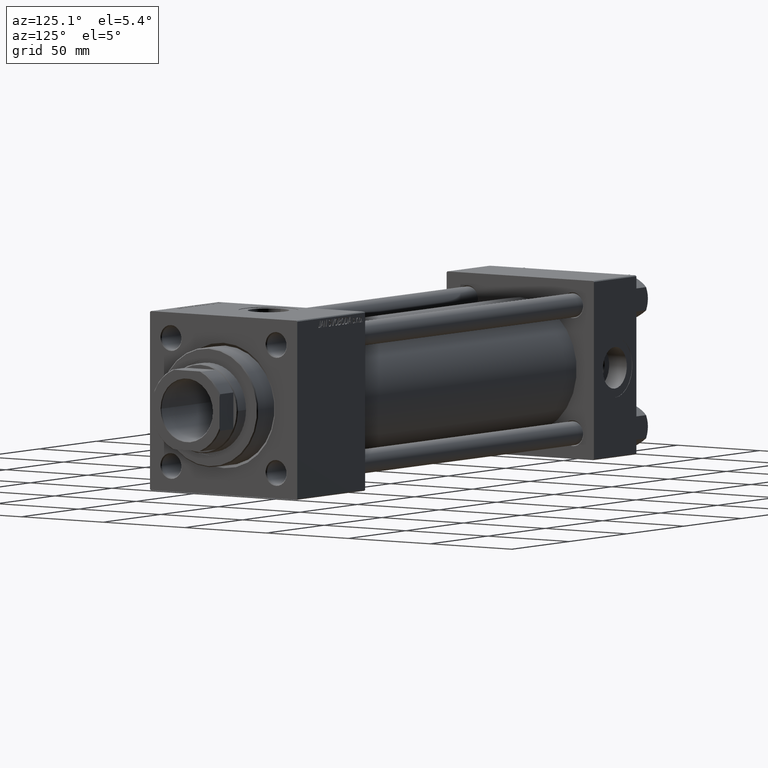
[diagram: clean part render]
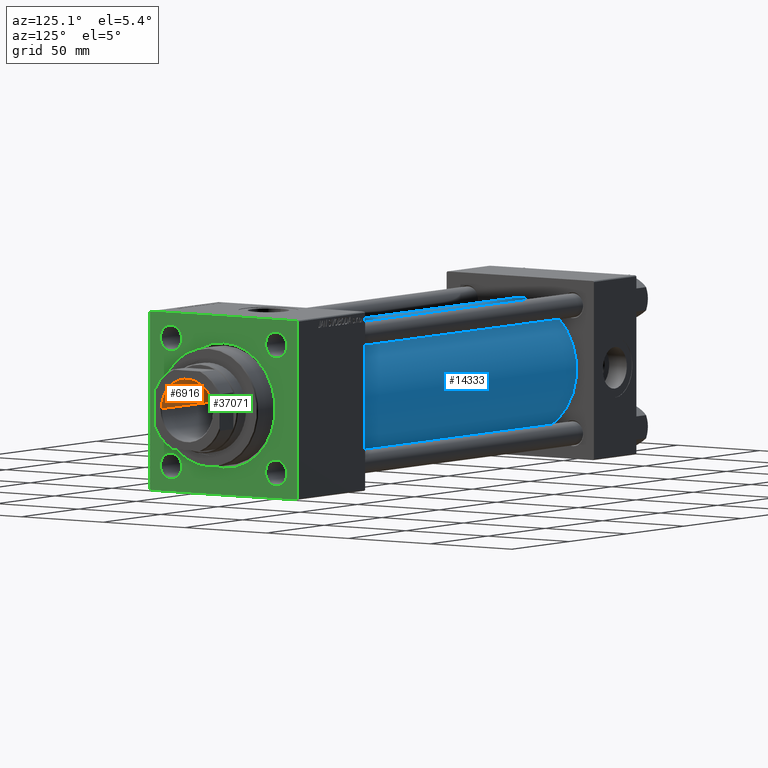
[diagram: same view with three faces highlighted in distinct colors, each labeled with its STEP entity id]
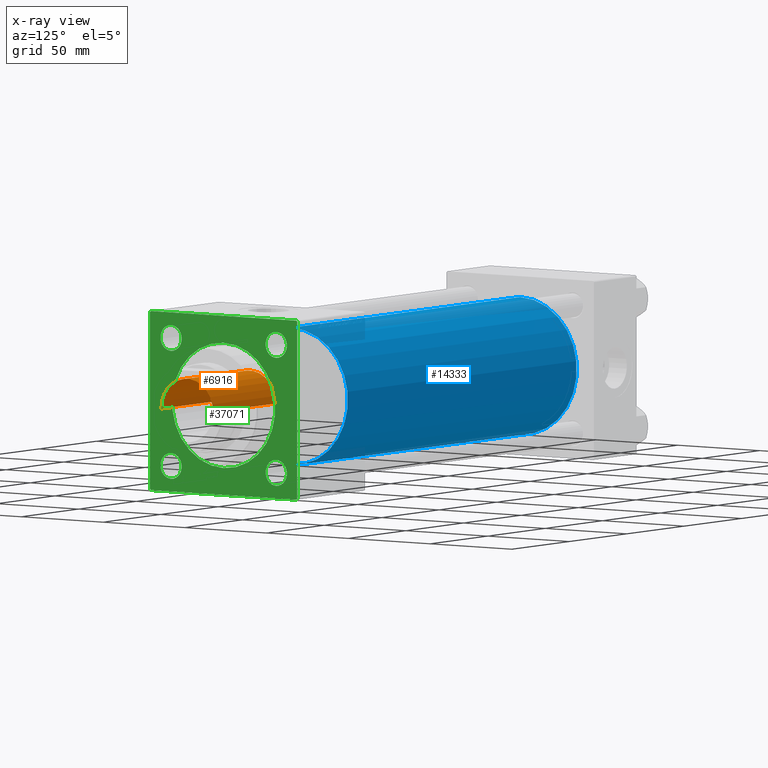
[diagram: x-ray of the same camera — body ghosted, the three highlighted faces saturated]
A machine part, auxiliary view with three faces highlighted in distinct colors.
The next image is the same camera in x-ray (body ghosted, the three faces saturated) — at least one of them is partly hidden behind the body in this view.
Their STEP definitions:

[orange] entity #6916 — the highlighted cylindrical surface (edge-blend (fillet) strip) has radius 15.75 mm, axis along (1, 0, 0).
#356 = AXIS2_PLACEMENT_3D ( 'NONE', #35324, #11769, #46736 ) ;
#3446 = DIRECTION ( 'NONE',  ( 1.000000000000000000, 0.000000000000000000, 0.000000000000000000 ) ) ;
#5025 = DIRECTION ( 'NONE',  ( -0.000000000000000000, -0.000000000000000000, 1.000000000000000000 ) ) ;
#6916 = ADVANCED_FACE ( 'NONE', ( #29017 ), #40423, .F. ) ;
#6994 = CARTESIAN_POINT ( 'NONE',  ( 0.000000000000000000, 0.000000000000000000, 235.0000000000000000 ) ) ;
#7410 = DIRECTION ( 'NONE',  ( -0.000000000000000000, -0.000000000000000000, 1.000000000000000000 ) ) ;
#8553 = VECTOR ( 'NONE', #7410, 1000.000000000000000 ) ;
#9266 = DIRECTION ( 'NONE',  ( 1.000000000000000000, 0.000000000000000000, 0.000000000000000000 ) ) ;
#11755 = ORIENTED_EDGE ( 'NONE', *, *, #15854, .T. ) ;
#11769 = DIRECTION ( 'NONE',  ( 0.000000000000000000, 0.000000000000000000, 1.000000000000000000 ) ) ;
#12092 = AXIS2_PLACEMENT_3D ( 'NONE', #6994, #22225, #3446 ) ;
#13133 = VERTEX_POINT ( 'NONE', #26645 ) ;
#14381 = VERTEX_POINT ( 'NONE', #36432 ) ;
#15327 = CIRCLE ( 'NONE', #12092, 15.74999999999998934 ) ;
#15854 = EDGE_CURVE ( 'NONE', #14381, #26039, #47282, .T. ) ;
#21224 = CARTESIAN_POINT ( 'NONE',  ( -15.74999999999998934, 1.928818708657080161E-15, 235.0000000000000000 ) ) ;
#22225 = DIRECTION ( 'NONE',  ( -0.000000000000000000, -0.000000000000000000, 1.000000000000000000 ) ) ;
#22501 = EDGE_CURVE ( 'NONE', #34502, #14381, #23131, .T. ) ;
#23131 = LINE ( 'NONE', #38573, #8553 ) ;
#23780 = EDGE_CURVE ( 'NONE', #13133, #26039, #44297, .T. ) ;
#26039 = VERTEX_POINT ( 'NONE', #35453 ) ;
#26645 = CARTESIAN_POINT ( 'NONE',  ( 15.74999999999998934, 0.000000000000000000, 235.0000000000000000 ) ) ;
#28032 = DIRECTION ( 'NONE',  ( -0.000000000000000000, -0.000000000000000000, 1.000000000000000000 ) ) ;
#28100 = CARTESIAN_POINT ( 'NONE',  ( 15.74999999999999289, 0.000000000000000000, 290.0000000000000000 ) ) ;
#29017 = FACE_OUTER_BOUND ( 'NONE', #38906, .T. ) ;
#30333 = ORIENTED_EDGE ( 'NONE', *, *, #31728, .F. ) ;
#31728 = EDGE_CURVE ( 'NONE', #34502, #13133, #15327, .T. ) ;
#32408 = AXIS2_PLACEMENT_3D ( 'NONE', #36616, #28032, #9266 ) ;
#34502 = VERTEX_POINT ( 'NONE', #21224 ) ;
#35324 = CARTESIAN_POINT ( 'NONE',  ( 0.000000000000000000, 0.000000000000000000, 289.6999999999998749 ) ) ;
#35453 = CARTESIAN_POINT ( 'NONE',  ( 15.74999999999999289, 0.000000000000000000, 289.6999999999998749 ) ) ;
#36432 = CARTESIAN_POINT ( 'NONE',  ( -15.74999999999999289, 1.928818708657080556E-15, 289.6999999999998749 ) ) ;
#36616 = CARTESIAN_POINT ( 'NONE',  ( 0.000000000000000000, 0.000000000000000000, 290.0000000000000000 ) ) ;
#38573 = CARTESIAN_POINT ( 'NONE',  ( -15.74999999999999289, 1.928818708657080556E-15, 290.0000000000000000 ) ) ;
#38906 = EDGE_LOOP ( 'NONE', ( #30333, #47325, #11755, #44699 ) ) ;
#40423 = CYLINDRICAL_SURFACE ( 'NONE', #32408, 15.74999999999999289 ) ;
#44297 = LINE ( 'NONE', #28100, #49867 ) ;
#44699 = ORIENTED_EDGE ( 'NONE', *, *, #23780, .F. ) ;
#46736 = DIRECTION ( 'NONE',  ( 1.000000000000000000, 0.000000000000000000, 0.000000000000000000 ) ) ;
#47282 = CIRCLE ( 'NONE', #356, 15.74999999999999289 ) ;
#47325 = ORIENTED_EDGE ( 'NONE', *, *, #22501, .T. ) ;
#49867 = VECTOR ( 'NONE', #5025, 1000.000000000000000 ) ;

[blue] entity #14333 — the highlighted cylindrical surface (partial cylindrical patch) has radius 34.5 mm, axis along (-1, -0, -0).
#496 = EDGE_CURVE ( 'NONE', #13558, #20638, #39624, .T. ) ;
#1685 = EDGE_CURVE ( 'NONE', #8427, #13558, #4314, .T. ) ;
#2000 = CARTESIAN_POINT ( 'NONE',  ( 236.0000000000000284, -2.602085213965210642E-15, 34.50000000000000000 ) ) ;
#2459 = VERTEX_POINT ( 'NONE', #2000 ) ;
#4314 = LINE ( 'NONE', #12432, #24299 ) ;
#5078 = CARTESIAN_POINT ( 'NONE',  ( 37.00000000000000711, -2.602085213965210642E-15, 34.50000000000000000 ) ) ;
#5265 = CARTESIAN_POINT ( 'NONE',  ( 236.0000000000000284, -2.602085213965210642E-15, 0.000000000000000000 ) ) ;
#5607 = AXIS2_PLACEMENT_3D ( 'NONE', #38513, #30165, #19033 ) ;
#7873 = DIRECTION ( 'NONE',  ( -1.000000000000000000, -0.000000000000000000, -0.000000000000000000 ) ) ;
#8419 = CARTESIAN_POINT ( 'NONE',  ( 236.0000000000000284, 1.622946243093158675E-15, -34.50000000000000000 ) ) ;
#8427 = VERTEX_POINT ( 'NONE', #8419 ) ;
#12432 = CARTESIAN_POINT ( 'NONE',  ( 236.0000000000000284, 1.622946243093158675E-15, -34.50000000000000000 ) ) ;
#13558 = VERTEX_POINT ( 'NONE', #24291 ) ;
#14129 = LINE ( 'NONE', #33614, #41575 ) ;
#14333 = ADVANCED_FACE ( 'NONE', ( #24546 ), #39996, .T. ) ;
#14419 = EDGE_CURVE ( 'NONE', #2459, #20638, #14129, .T. ) ;
#17117 = DIRECTION ( 'NONE',  ( 1.000000000000000000, 0.000000000000000000, 0.000000000000000000 ) ) ;
#18187 = EDGE_LOOP ( 'NONE', ( #30385, #41895, #41552, #21640 ) ) ;
#19033 = DIRECTION ( 'NONE',  ( 0.000000000000000000, 0.000000000000000000, 1.000000000000000000 ) ) ;
#20638 = VERTEX_POINT ( 'NONE', #5078 ) ;
#20751 = DIRECTION ( 'NONE',  ( -1.000000000000000000, -0.000000000000000000, -0.000000000000000000 ) ) ;
#21640 = ORIENTED_EDGE ( 'NONE', *, *, #14419, .F. ) ;
#24291 = CARTESIAN_POINT ( 'NONE',  ( 37.00000000000000711, 1.622946243093158675E-15, -34.50000000000000000 ) ) ;
#24299 = VECTOR ( 'NONE', #7873, 1000.000000000000000 ) ;
#24546 = FACE_OUTER_BOUND ( 'NONE', #18187, .T. ) ;
#26287 = DIRECTION ( 'NONE',  ( -1.000000000000000000, -0.000000000000000000, -0.000000000000000000 ) ) ;
#28258 = DIRECTION ( 'NONE',  ( 0.000000000000000000, 0.000000000000000000, -1.000000000000000000 ) ) ;
#30165 = DIRECTION ( 'NONE',  ( 1.000000000000000000, -0.000000000000000000, 0.000000000000000000 ) ) ;
#30385 = ORIENTED_EDGE ( 'NONE', *, *, #48205, .F. ) ;
#33614 = CARTESIAN_POINT ( 'NONE',  ( 236.0000000000000284, -2.602085213965210642E-15, 34.50000000000000000 ) ) ;
#36180 = DIRECTION ( 'NONE',  ( 0.000000000000000000, 0.000000000000000000, 1.000000000000000000 ) ) ;
#36924 = AXIS2_PLACEMENT_3D ( 'NONE', #47517, #17117, #28258 ) ;
#38513 = CARTESIAN_POINT ( 'NONE',  ( 37.00000000000000711, -2.602085213965210642E-15, 0.000000000000000000 ) ) ;
#39624 = CIRCLE ( 'NONE', #5607, 34.50000000000000000 ) ;
#39996 = CYLINDRICAL_SURFACE ( 'NONE', #43993, 34.50000000000000000 ) ;
#41552 = ORIENTED_EDGE ( 'NONE', *, *, #496, .T. ) ;
#41575 = VECTOR ( 'NONE', #26287, 1000.000000000000000 ) ;
#41895 = ORIENTED_EDGE ( 'NONE', *, *, #1685, .T. ) ;
#43993 = AXIS2_PLACEMENT_3D ( 'NONE', #5265, #20751, #36180 ) ;
#47517 = CARTESIAN_POINT ( 'NONE',  ( 236.0000000000000284, -2.602085213965210642E-15, 0.000000000000000000 ) ) ;
#48205 = EDGE_CURVE ( 'NONE', #8427, #2459, #49087, .T. ) ;
#49087 = CIRCLE ( 'NONE', #36924, 34.50000000000000000 ) ;

[green] entity #37071 — the highlighted planar face has unit normal (-1, 0, 0).
#188 = EDGE_CURVE ( 'NONE', #35543, #7197, #37987, .T. ) ;
#965 = EDGE_CURVE ( 'NONE', #21831, #42620, #46093, .T. ) ;
#1151 = CARTESIAN_POINT ( 'NONE',  ( 295.0000000000000568, 32.14999999999999147, -25.64999999999999858 ) ) ;
#1575 = DIRECTION ( 'NONE',  ( 0.000000000000000000, -0.7071067811865672237, 0.7071067811865279218 ) ) ;
#1736 = EDGE_CURVE ( 'NONE', #43436, #41792, #32420, .T. ) ;
#1899 = CARTESIAN_POINT ( 'NONE',  ( 295.0000000000000568, 45.00000000000001421, -44.50000000000000000 ) ) ;
#1921 = CIRCLE ( 'NONE', #5974, 6.500000000000005329 ) ;
#1922 = DIRECTION ( 'NONE',  ( 0.000000000000000000, -1.000000000000000000, 0.000000000000000000 ) ) ;
#2238 = CARTESIAN_POINT ( 'NONE',  ( 295.0000000000000568, -32.14999999999999147, 32.14999999999999147 ) ) ;
#2475 = FACE_BOUND ( 'NONE', #5438, .T. ) ;
#2748 = AXIS2_PLACEMENT_3D ( 'NONE', #16122, #23459, #35856 ) ;
#2817 = DIRECTION ( 'NONE',  ( 0.000000000000000000, 0.000000000000000000, 1.000000000000000000 ) ) ;
#2894 = AXIS2_PLACEMENT_3D ( 'NONE', #48737, #6910, #33012 ) ;
#3451 = ORIENTED_EDGE ( 'NONE', *, *, #11926, .T. ) ;
#3815 = DIRECTION ( 'NONE',  ( -1.000000000000000000, -0.000000000000000000, -0.000000000000000000 ) ) ;
#4151 = CARTESIAN_POINT ( 'NONE',  ( 295.0000000000000568, 3.857637417314162689E-15, 31.50000000000000000 ) ) ;
#4162 = DIRECTION ( 'NONE',  ( 0.000000000000000000, 0.000000000000000000, 1.000000000000000000 ) ) ;
#4880 = VECTOR ( 'NONE', #1922, 1000.000000000000000 ) ;
#5038 = ORIENTED_EDGE ( 'NONE', *, *, #44558, .T. ) ;
#5191 = VERTEX_POINT ( 'NONE', #24623 ) ;
#5325 = CARTESIAN_POINT ( 'NONE',  ( 295.0000000000000568, -44.49999999999997158, 44.99999999999998579 ) ) ;
#5438 = EDGE_LOOP ( 'NONE', ( #39727, #6457 ) ) ;
#5563 = CARTESIAN_POINT ( 'NONE',  ( 295.0000000000000568, -32.14999999999999147, 25.64999999999998437 ) ) ;
#5781 = ORIENTED_EDGE ( 'NONE', *, *, #30085, .T. ) ;
#5782 = DIRECTION ( 'NONE',  ( -0.000000000000000000, 0.000000000000000000, 1.000000000000000000 ) ) ;
#5974 = AXIS2_PLACEMENT_3D ( 'NONE', #8376, #3815, #42596 ) ;
#6098 = DIRECTION ( 'NONE',  ( 0.000000000000000000, 0.000000000000000000, 1.000000000000000000 ) ) ;
#6457 = ORIENTED_EDGE ( 'NONE', *, *, #48246, .T. ) ;
#6774 = CARTESIAN_POINT ( 'NONE',  ( 295.0000000000000568, 45.00000000000001421, 45.00000000000000000 ) ) ;
#6854 = CARTESIAN_POINT ( 'NONE',  ( 295.0000000000000568, 32.14999999999999147, 32.15000000000000568 ) ) ;
#6910 = DIRECTION ( 'NONE',  ( -1.000000000000000000, -0.000000000000000000, -0.000000000000000000 ) ) ;
#7159 = DIRECTION ( 'NONE',  ( -1.000000000000000000, -0.000000000000000000, -0.000000000000000000 ) ) ;
#7197 = VERTEX_POINT ( 'NONE', #46480 ) ;
#7235 = VERTEX_POINT ( 'NONE', #4151 ) ;
#7260 = VERTEX_POINT ( 'NONE', #28222 ) ;
#7658 = CARTESIAN_POINT ( 'NONE',  ( 295.0000000000000568, 32.14999999999999147, -38.65000000000001990 ) ) ;
#7720 = DIRECTION ( 'NONE',  ( 0.000000000000000000, -1.000000000000000000, -1.541976423090495140E-16 ) ) ;
#7934 = EDGE_LOOP ( 'NONE', ( #34724, #36450 ) ) ;
#8376 = CARTESIAN_POINT ( 'NONE',  ( 295.0000000000000568, 32.14999999999999147, -32.15000000000000568 ) ) ;
#9489 = CIRCLE ( 'NONE', #11081, 6.499999999999999112 ) ;
#9734 = DIRECTION ( 'NONE',  ( 0.000000000000000000, 0.000000000000000000, 1.000000000000000000 ) ) ;
#9745 = EDGE_CURVE ( 'NONE', #5191, #14671, #17960, .T. ) ;
#10250 = CARTESIAN_POINT ( 'NONE',  ( 295.0000000000000568, -44.99999999999999289, -44.49999999999997158 ) ) ;
#10285 = CARTESIAN_POINT ( 'NONE',  ( 295.0000000000000568, 45.00000000000001421, -45.00000000000000000 ) ) ;
#10880 = ORIENTED_EDGE ( 'NONE', *, *, #188, .T. ) ;
#11081 = AXIS2_PLACEMENT_3D ( 'NONE', #6854, #21824, #6098 ) ;
#11261 = CIRCLE ( 'NONE', #50076, 6.499999999999999112 ) ;
#11288 = CARTESIAN_POINT ( 'NONE',  ( 295.0000000000000568, 32.14999999999999147, -32.15000000000000568 ) ) ;
#11290 = AXIS2_PLACEMENT_3D ( 'NONE', #48861, #33135, #5782 ) ;
#11926 = EDGE_CURVE ( 'NONE', #18331, #7260, #14092, .T. ) ;
#11934 = ORIENTED_EDGE ( 'NONE', *, *, #46656, .T. ) ;
#11966 = DIRECTION ( 'NONE',  ( 0.000000000000000000, 0.000000000000000000, 1.000000000000000000 ) ) ;
#13171 = CIRCLE ( 'NONE', #28548, 6.500000000000005329 ) ;
#13174 = VECTOR ( 'NONE', #32596, 1000.000000000000000 ) ;
#13407 = VERTEX_POINT ( 'NONE', #37977 ) ;
#14092 = LINE ( 'NONE', #36152, #13174 ) ;
#14204 = DIRECTION ( 'NONE',  ( 0.000000000000000000, 7.709882115452478166E-17, -1.000000000000000000 ) ) ;
#14494 = ORIENTED_EDGE ( 'NONE', *, *, #36747, .T. ) ;
#14671 = VERTEX_POINT ( 'NONE', #1899 ) ;
#14892 = DIRECTION ( 'NONE',  ( -1.000000000000000000, -0.000000000000000000, -0.000000000000000000 ) ) ;
#15134 = ORIENTED_EDGE ( 'NONE', *, *, #47768, .T. ) ;
#15358 = VECTOR ( 'NONE', #14204, 1000.000000000000000 ) ;
#15759 = ORIENTED_EDGE ( 'NONE', *, *, #48051, .T. ) ;
#16043 = CARTESIAN_POINT ( 'NONE',  ( 295.0000000000000568, -32.15000000000001279, -32.15000000000000568 ) ) ;
#16122 = CARTESIAN_POINT ( 'NONE',  ( 295.0000000000000568, -32.15000000000001279, -32.15000000000000568 ) ) ;
#16155 = CARTESIAN_POINT ( 'NONE',  ( 295.0000000000000568, -32.14999999999999147, 38.64999999999999858 ) ) ;
#16888 = VERTEX_POINT ( 'NONE', #32220 ) ;
#17467 = FACE_BOUND ( 'NONE', #7934, .T. ) ;
#17642 = CARTESIAN_POINT ( 'NONE',  ( 295.0000000000000568, 45.00000000000001421, 45.00000000000000000 ) ) ;
#17713 = FACE_OUTER_BOUND ( 'NONE', #46356, .T. ) ;
#17861 = CARTESIAN_POINT ( 'NONE',  ( 295.0000000000000568, 0.000000000000000000, 0.000000000000000000 ) ) ;
#17960 = LINE ( 'NONE', #6774, #31694 ) ;
#18102 = LINE ( 'NONE', #18351, #43745 ) ;
#18211 = DIRECTION ( 'NONE',  ( 0.000000000000000000, 0.000000000000000000, -1.000000000000000000 ) ) ;
#18331 = VERTEX_POINT ( 'NONE', #10250 ) ;
#18351 = CARTESIAN_POINT ( 'NONE',  ( 295.0000000000000568, 45.00000000000001421, -44.50000000000002842 ) ) ;
#21200 = EDGE_LOOP ( 'NONE', ( #5038, #48291 ) ) ;
#21824 = DIRECTION ( 'NONE',  ( -1.000000000000000000, -0.000000000000000000, -0.000000000000000000 ) ) ;
#21831 = VERTEX_POINT ( 'NONE', #16155 ) ;
#22397 = EDGE_CURVE ( 'NONE', #44514, #7235, #39296, .T. ) ;
#22523 = DIRECTION ( 'NONE',  ( -1.000000000000000000, -0.000000000000000000, -0.000000000000000000 ) ) ;
#22638 = AXIS2_PLACEMENT_3D ( 'NONE', #16043, #7159, #11966 ) ;
#23459 = DIRECTION ( 'NONE',  ( -1.000000000000000000, -0.000000000000000000, -0.000000000000000000 ) ) ;
#23778 = ORIENTED_EDGE ( 'NONE', *, *, #1736, .T. ) ;
#24623 = CARTESIAN_POINT ( 'NONE',  ( 295.0000000000000568, 45.00000000000001421, 44.50000000000010658 ) ) ;
#24659 = CARTESIAN_POINT ( 'NONE',  ( 295.0000000000000568, 44.50000000000009237, 45.00000000000000000 ) ) ;
#24783 = CARTESIAN_POINT ( 'NONE',  ( 295.0000000000000568, 44.50000000000001421, -45.00000000000000000 ) ) ;
#24981 = ORIENTED_EDGE ( 'NONE', *, *, #9745, .F. ) ;
#25742 = EDGE_CURVE ( 'NONE', #16888, #34194, #9489, .T. ) ;
#26191 = AXIS2_PLACEMENT_3D ( 'NONE', #11288, #45754, #41958 ) ;
#26566 = DIRECTION ( 'NONE',  ( 0.000000000000000000, 0.000000000000000000, 1.000000000000000000 ) ) ;
#27697 = ORIENTED_EDGE ( 'NONE', *, *, #38764, .T. ) ;
#27950 = CIRCLE ( 'NONE', #2748, 6.500000000000005329 ) ;
#28048 = AXIS2_PLACEMENT_3D ( 'NONE', #17861, #40162, #9734 ) ;
#28222 = CARTESIAN_POINT ( 'NONE',  ( 295.0000000000000568, -44.49999999999998579, -45.00000000000000000 ) ) ;
#28514 = CARTESIAN_POINT ( 'NONE',  ( 295.0000000000000568, -45.00000000000000000, 44.50000000000001421 ) ) ;
#28548 = AXIS2_PLACEMENT_3D ( 'NONE', #37441, #14892, #4162 ) ;
#28626 = DIRECTION ( 'NONE',  ( -0.000000000000000000, -0.7071067811865671127, -0.7071067811865279218 ) ) ;
#28835 = VERTEX_POINT ( 'NONE', #24783 ) ;
#28852 = FACE_BOUND ( 'NONE', #42826, .T. ) ;
#29095 = PLANE ( 'NONE',  #11290 ) ;
#29651 = LINE ( 'NONE', #33686, #15358 ) ;
#29663 = CIRCLE ( 'NONE', #28048, 31.50000000000000000 ) ;
#30085 = EDGE_CURVE ( 'NONE', #13407, #43436, #40688, .T. ) ;
#31207 = EDGE_CURVE ( 'NONE', #34194, #16888, #11261, .T. ) ;
#31276 = CARTESIAN_POINT ( 'NONE',  ( 295.0000000000000568, 0.000000000000000000, -31.50000000000000000 ) ) ;
#31694 = VECTOR ( 'NONE', #18211, 1000.000000000000000 ) ;
#32022 = ORIENTED_EDGE ( 'NONE', *, *, #42142, .T. ) ;
#32220 = CARTESIAN_POINT ( 'NONE',  ( 295.0000000000000568, 32.14999999999999147, 38.65000000000000568 ) ) ;
#32420 = LINE ( 'NONE', #40529, #37221 ) ;
#32596 = DIRECTION ( 'NONE',  ( 0.000000000000000000, 0.7071067811865328068, -0.7071067811865622277 ) ) ;
#33012 = DIRECTION ( 'NONE',  ( 0.000000000000000000, 0.000000000000000000, 1.000000000000000000 ) ) ;
#33135 = DIRECTION ( 'NONE',  ( -1.000000000000000000, 0.000000000000000000, -0.000000000000000000 ) ) ;
#33384 = FACE_BOUND ( 'NONE', #21200, .T. ) ;
#33686 = CARTESIAN_POINT ( 'NONE',  ( 295.0000000000000568, -45.00000000000000000, 44.99999999999998579 ) ) ;
#34194 = VERTEX_POINT ( 'NONE', #42849 ) ;
#34276 = DIRECTION ( 'NONE',  ( -0.000000000000000000, 0.7071067811865671127, 0.7071067811865279218 ) ) ;
#34724 = ORIENTED_EDGE ( 'NONE', *, *, #31207, .T. ) ;
#34775 = AXIS2_PLACEMENT_3D ( 'NONE', #2238, #22523, #26566 ) ;
#35543 = VERTEX_POINT ( 'NONE', #49754 ) ;
#35856 = DIRECTION ( 'NONE',  ( 0.000000000000000000, 0.000000000000000000, 1.000000000000000000 ) ) ;
#36152 = CARTESIAN_POINT ( 'NONE',  ( 295.0000000000000568, -44.50000000000001421, -45.00000000000000000 ) ) ;
#36450 = ORIENTED_EDGE ( 'NONE', *, *, #25742, .T. ) ;
#36747 = EDGE_CURVE ( 'NONE', #41792, #18331, #29651, .T. ) ;
#37071 = ADVANCED_FACE ( 'NONE', ( #17467, #33384, #37198, #28852, #2475, #17713 ), #29095, .F. ) ;
#37198 = FACE_BOUND ( 'NONE', #41317, .T. ) ;
#37221 = VECTOR ( 'NONE', #28626, 1000.000000000000000 ) ;
#37441 = CARTESIAN_POINT ( 'NONE',  ( 295.0000000000000568, -32.14999999999999147, 32.14999999999999147 ) ) ;
#37977 = CARTESIAN_POINT ( 'NONE',  ( 295.0000000000000568, 44.50000000000009237, 45.00000000000000000 ) ) ;
#37987 = CIRCLE ( 'NONE', #22638, 6.500000000000005329 ) ;
#38297 = EDGE_CURVE ( 'NONE', #28835, #7260, #44998, .T. ) ;
#38764 = EDGE_CURVE ( 'NONE', #28835, #14671, #18102, .T. ) ;
#39296 = CIRCLE ( 'NONE', #2894, 31.50000000000000000 ) ;
#39727 = ORIENTED_EDGE ( 'NONE', *, *, #22397, .T. ) ;
#40162 = DIRECTION ( 'NONE',  ( -1.000000000000000000, -0.000000000000000000, -0.000000000000000000 ) ) ;
#40529 = CARTESIAN_POINT ( 'NONE',  ( 295.0000000000000568, -45.00000000000000000, 44.50000000000001421 ) ) ;
#40593 = DIRECTION ( 'NONE',  ( -1.000000000000000000, -0.000000000000000000, -0.000000000000000000 ) ) ;
#40688 = LINE ( 'NONE', #17642, #47620 ) ;
#41317 = EDGE_LOOP ( 'NONE', ( #15759, #10880 ) ) ;
#41351 = CARTESIAN_POINT ( 'NONE',  ( 295.0000000000000568, 32.14999999999999147, 32.15000000000000568 ) ) ;
#41792 = VERTEX_POINT ( 'NONE', #28514 ) ;
#41905 = VERTEX_POINT ( 'NONE', #1151 ) ;
#41958 = DIRECTION ( 'NONE',  ( 0.000000000000000000, 0.000000000000000000, 1.000000000000000000 ) ) ;
#42142 = EDGE_CURVE ( 'NONE', #5191, #13407, #44157, .T. ) ;
#42264 = VECTOR ( 'NONE', #1575, 1000.000000000000000 ) ;
#42596 = DIRECTION ( 'NONE',  ( 0.000000000000000000, 0.000000000000000000, 1.000000000000000000 ) ) ;
#42620 = VERTEX_POINT ( 'NONE', #5563 ) ;
#42826 = EDGE_LOOP ( 'NONE', ( #11934, #15134 ) ) ;
#42849 = CARTESIAN_POINT ( 'NONE',  ( 295.0000000000000568, 32.14999999999999147, 25.65000000000000568 ) ) ;
#43095 = CIRCLE ( 'NONE', #26191, 6.500000000000005329 ) ;
#43235 = ORIENTED_EDGE ( 'NONE', *, *, #38297, .F. ) ;
#43436 = VERTEX_POINT ( 'NONE', #5325 ) ;
#43745 = VECTOR ( 'NONE', #34276, 1000.000000000000000 ) ;
#44157 = LINE ( 'NONE', #24659, #42264 ) ;
#44514 = VERTEX_POINT ( 'NONE', #31276 ) ;
#44558 = EDGE_CURVE ( 'NONE', #42620, #21831, #13171, .T. ) ;
#44836 = VERTEX_POINT ( 'NONE', #7658 ) ;
#44998 = LINE ( 'NONE', #10285, #4880 ) ;
#45754 = DIRECTION ( 'NONE',  ( -1.000000000000000000, -0.000000000000000000, -0.000000000000000000 ) ) ;
#46093 = CIRCLE ( 'NONE', #34775, 6.500000000000005329 ) ;
#46356 = EDGE_LOOP ( 'NONE', ( #14494, #3451, #43235, #27697, #24981, #32022, #5781, #23778 ) ) ;
#46480 = CARTESIAN_POINT ( 'NONE',  ( 295.0000000000000568, -32.15000000000001279, -38.65000000000001990 ) ) ;
#46656 = EDGE_CURVE ( 'NONE', #44836, #41905, #43095, .T. ) ;
#47620 = VECTOR ( 'NONE', #7720, 1000.000000000000000 ) ;
#47768 = EDGE_CURVE ( 'NONE', #41905, #44836, #1921, .T. ) ;
#48051 = EDGE_CURVE ( 'NONE', #7197, #35543, #27950, .T. ) ;
#48246 = EDGE_CURVE ( 'NONE', #7235, #44514, #29663, .T. ) ;
#48291 = ORIENTED_EDGE ( 'NONE', *, *, #965, .T. ) ;
#48737 = CARTESIAN_POINT ( 'NONE',  ( 295.0000000000000568, 0.000000000000000000, 0.000000000000000000 ) ) ;
#48861 = CARTESIAN_POINT ( 'NONE',  ( 295.0000000000000568, 0.000000000000000000, 0.000000000000000000 ) ) ;
#49754 = CARTESIAN_POINT ( 'NONE',  ( 295.0000000000000568, -32.15000000000001279, -25.64999999999999858 ) ) ;
#50076 = AXIS2_PLACEMENT_3D ( 'NONE', #41351, #40593, #2817 ) ;